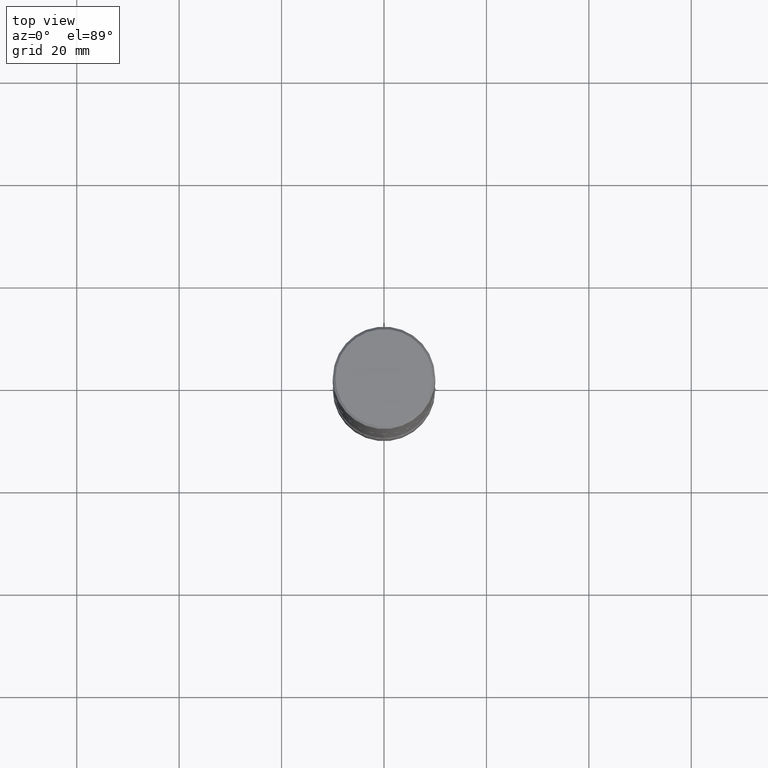
[diagram: clean part render]
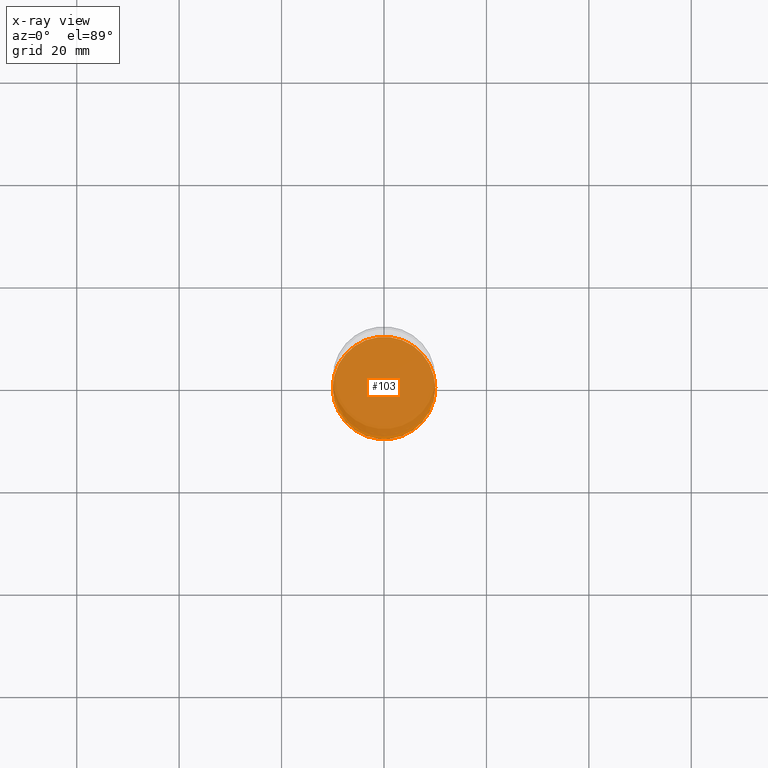
[diagram: x-ray — body ghosted, one internal face saturated and labeled with its STEP entity id]
A machine part, top view, then the same camera in x-ray: the body is ghosted and one INTERNAL B-rep face — a face not visible from any outside direction — is saturated and labeled: STEP entity #103.
In plain terms, the highlighted planar face has unit normal (0, -0, -1).
Its self-contained STEP definition (entity closure, byte-faithful):
#12 = FACE_OUTER_BOUND ( 'NONE', #429, .T. ) ;
#48 = ORIENTED_EDGE ( 'NONE', *, *, #298, .T. ) ;
#79 = ORIENTED_EDGE ( 'NONE', *, *, #327, .T. ) ;
#100 = DIRECTION ( 'NONE',  ( 2.438088387897960049E-29, -3.491481338843145188E-15, -1.000000000000000000 ) ) ;
#103 = ADVANCED_FACE ( 'NONE', ( #12 ), #538, .F. ) ;
#107 = DIRECTION ( 'NONE',  ( 1.000000000000000000, -6.982962677686270655E-15, 0.000000000000000000 ) ) ;
#137 = CIRCLE ( 'NONE', #275, 0.3937000000000004385 ) ;
#144 = CARTESIAN_POINT ( 'NONE',  ( 1.116821149096690103E-28, -1.594524612636276117E-14, -4.566900000000000404 ) ) ;
#169 = VERTEX_POINT ( 'NONE', #254 ) ;
#193 = CARTESIAN_POINT ( 'NONE',  ( 1.116821149096690103E-28, -1.594524612636276117E-14, -4.566900000000000404 ) ) ;
#225 = DIRECTION ( 'NONE',  ( -2.445468806185136597E-29, 3.491481338843145583E-15, 1.000000000000000000 ) ) ;
#254 = CARTESIAN_POINT ( 'NONE',  ( 0.3937000000000004385, -1.869443853256785070E-14, -4.566900000000000404 ) ) ;
#275 = AXIS2_PLACEMENT_3D ( 'NONE', #193, #225, #107 ) ;
#298 = EDGE_CURVE ( 'NONE', #169, #442, #454, .T. ) ;
#315 = DIRECTION ( 'NONE',  ( -2.445468806185136597E-29, 3.491481338843145583E-15, 1.000000000000000000 ) ) ;
#327 = EDGE_CURVE ( 'NONE', #442, #169, #137, .T. ) ;
#371 = DIRECTION ( 'NONE',  ( 1.000000000000000000, -6.982962677686270655E-15, 0.000000000000000000 ) ) ;
#408 = DIRECTION ( 'NONE',  ( -1.000000000000000000, 6.982962677686265922E-15, -4.876176775795935793E-29 ) ) ;
#429 = EDGE_LOOP ( 'NONE', ( #48, #79 ) ) ;
#442 = VERTEX_POINT ( 'NONE', #445 ) ;
#445 = CARTESIAN_POINT ( 'NONE',  ( -0.3937000000000004385, -1.459121776115300155E-14, -4.566900000000000404 ) ) ;
#454 = CIRCLE ( 'NONE', #486, 0.3937000000000004385 ) ;
#486 = AXIS2_PLACEMENT_3D ( 'NONE', #492, #315, #371 ) ;
#492 = CARTESIAN_POINT ( 'NONE',  ( 1.116821149096690103E-28, -1.594524612636276117E-14, -4.566900000000000404 ) ) ;
#497 = AXIS2_PLACEMENT_3D ( 'NONE', #144, #100, #408 ) ;
#538 = PLANE ( 'NONE',  #497 ) ;